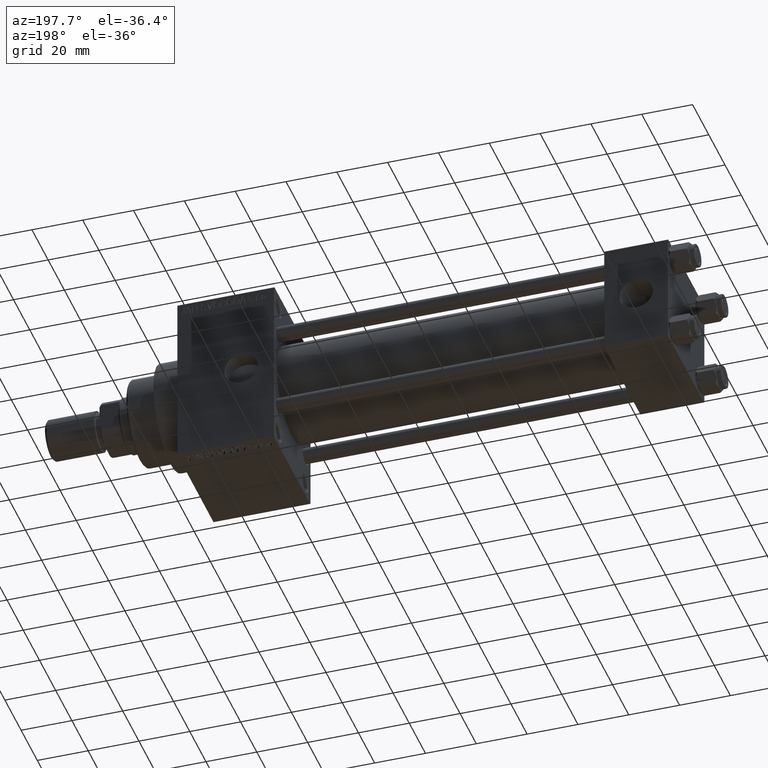
[diagram: clean part render]
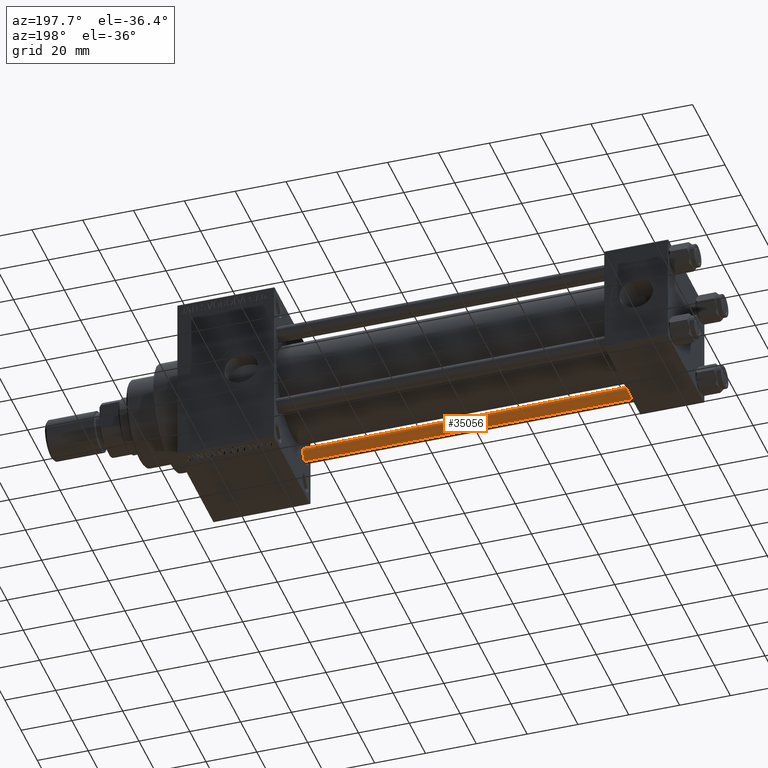
[diagram: same view with one face highlighted and labeled with its STEP entity id]
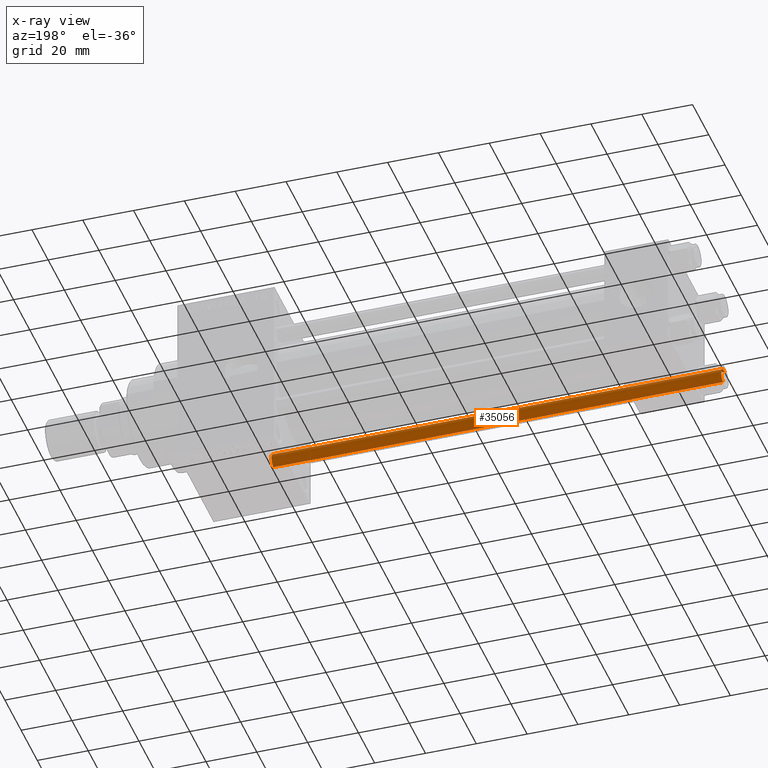
[diagram: x-ray of the same camera — body ghosted, the highlighted face saturated]
A machine part, auxiliary view. The second image highlights one B-rep face of the part: STEP entity #35056.
The next image is the same camera in x-ray: the body ghosted, the highlighted face saturated — about 1% of this face is hidden behind the body in this view.
In plain terms, the highlighted cylindrical surface (edge-blend (fillet) strip) has radius 3 mm, axis along (-1, 0, 0).
Its self-contained STEP definition (entity closure, byte-faithful):
#928 = CARTESIAN_POINT ( 'NONE',  ( -3.000000000000000444, 0.000000000000000000, 178.0000000000000000 ) ) ;
#1667 = AXIS2_PLACEMENT_3D ( 'NONE', #35651, #24131, #8355 ) ;
#2426 = DIRECTION ( 'NONE',  ( 1.000000000000000000, 0.000000000000000000, 0.000000000000000000 ) ) ;
#2912 = CARTESIAN_POINT ( 'NONE',  ( -3.000000000000000444, 0.000000000000000000, 0.5000000000000281997 ) ) ;
#3630 = CYLINDRICAL_SURFACE ( 'NONE', #27242, 3.000000000000000444 ) ;
#4369 = VERTEX_POINT ( 'NONE', #39007 ) ;
#6032 = ORIENTED_EDGE ( 'NONE', *, *, #49333, .T. ) ;
#6377 = VECTOR ( 'NONE', #27727, 1000.000000000000000 ) ;
#6394 = LINE ( 'NONE', #11552, #18115 ) ;
#6569 = EDGE_CURVE ( 'NONE', #6956, #49338, #20722, .T. ) ;
#6956 = VERTEX_POINT ( 'NONE', #7594 ) ;
#7594 = CARTESIAN_POINT ( 'NONE',  ( -3.000000000000000444, 0.000000000000000000, 177.5000000000000000 ) ) ;
#7636 = FACE_OUTER_BOUND ( 'NONE', #8964, .T. ) ;
#8125 = DIRECTION ( 'NONE',  ( -0.000000000000000000, -0.000000000000000000, -1.000000000000000000 ) ) ;
#8213 = VERTEX_POINT ( 'NONE', #29660 ) ;
#8355 = DIRECTION ( 'NONE',  ( 1.000000000000000000, 0.000000000000000000, 0.000000000000000000 ) ) ;
#8938 = CARTESIAN_POINT ( 'NONE',  ( 0.000000000000000000, 0.000000000000000000, 177.5000000000000000 ) ) ;
#8964 = EDGE_LOOP ( 'NONE', ( #42794, #6032, #20341, #47169 ) ) ;
#11552 = CARTESIAN_POINT ( 'NONE',  ( 3.000000000000000444, 3.673940397442060361E-16, 178.0000000000000000 ) ) ;
#17684 = CIRCLE ( 'NONE', #1667, 3.000000000000000444 ) ;
#18115 = VECTOR ( 'NONE', #38104, 1000.000000000000000 ) ;
#20341 = ORIENTED_EDGE ( 'NONE', *, *, #6569, .T. ) ;
#20722 = LINE ( 'NONE', #928, #6377 ) ;
#22400 = EDGE_CURVE ( 'NONE', #4369, #8213, #6394, .T. ) ;
#24131 = DIRECTION ( 'NONE',  ( -0.000000000000000000, -0.000000000000000000, 1.000000000000000000 ) ) ;
#27242 = AXIS2_PLACEMENT_3D ( 'NONE', #42453, #8125, #38199 ) ;
#27650 = AXIS2_PLACEMENT_3D ( 'NONE', #8938, #35991, #2426 ) ;
#27727 = DIRECTION ( 'NONE',  ( -0.000000000000000000, -0.000000000000000000, -1.000000000000000000 ) ) ;
#28452 = CIRCLE ( 'NONE', #27650, 3.000000000000000444 ) ;
#29660 = CARTESIAN_POINT ( 'NONE',  ( 3.000000000000000444, 3.673940397442060361E-16, 0.5000000000000281997 ) ) ;
#32186 = EDGE_CURVE ( 'NONE', #49338, #8213, #17684, .T. ) ;
#35056 = ADVANCED_FACE ( 'NONE', ( #7636 ), #3630, .T. ) ;
#35651 = CARTESIAN_POINT ( 'NONE',  ( 0.000000000000000000, 0.000000000000000000, 0.5000000000000281997 ) ) ;
#35991 = DIRECTION ( 'NONE',  ( 0.000000000000000000, 0.000000000000000000, -1.000000000000000000 ) ) ;
#38104 = DIRECTION ( 'NONE',  ( -0.000000000000000000, -0.000000000000000000, -1.000000000000000000 ) ) ;
#38199 = DIRECTION ( 'NONE',  ( -1.000000000000000000, 0.000000000000000000, 0.000000000000000000 ) ) ;
#39007 = CARTESIAN_POINT ( 'NONE',  ( 3.000000000000000444, 3.673940397442060361E-16, 177.5000000000000000 ) ) ;
#42453 = CARTESIAN_POINT ( 'NONE',  ( 0.000000000000000000, 0.000000000000000000, 178.0000000000000000 ) ) ;
#42794 = ORIENTED_EDGE ( 'NONE', *, *, #22400, .F. ) ;
#47169 = ORIENTED_EDGE ( 'NONE', *, *, #32186, .T. ) ;
#49333 = EDGE_CURVE ( 'NONE', #4369, #6956, #28452, .T. ) ;
#49338 = VERTEX_POINT ( 'NONE', #2912 ) ;